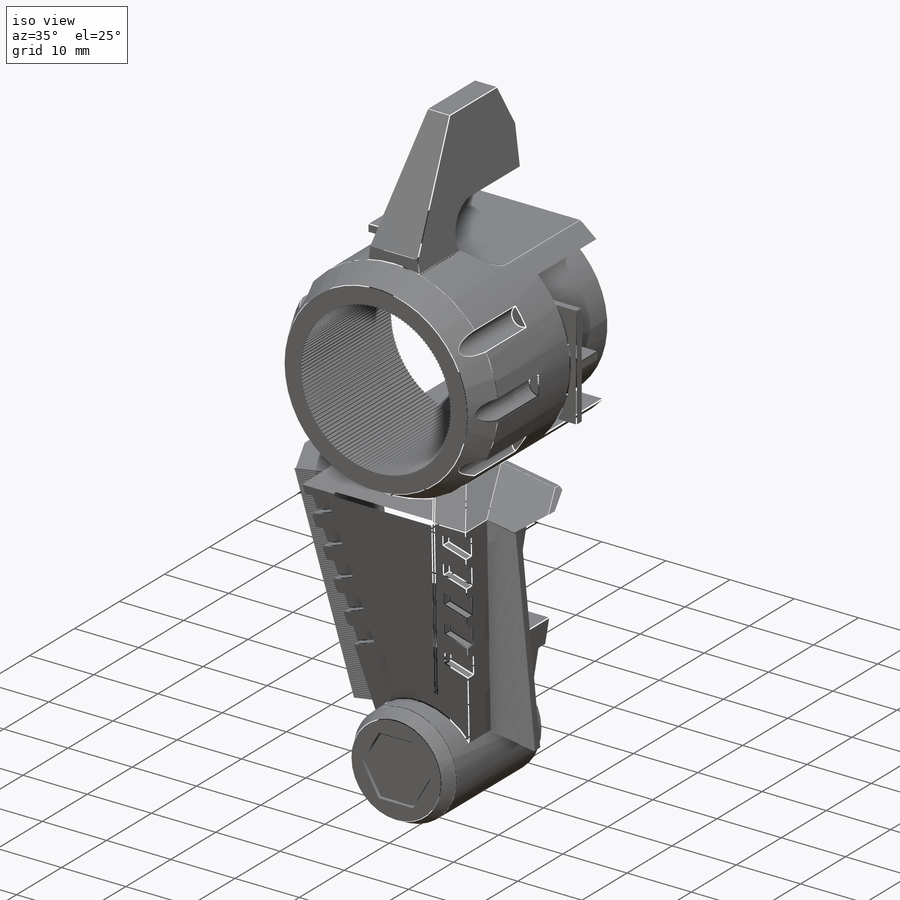
[diagram: iso view]
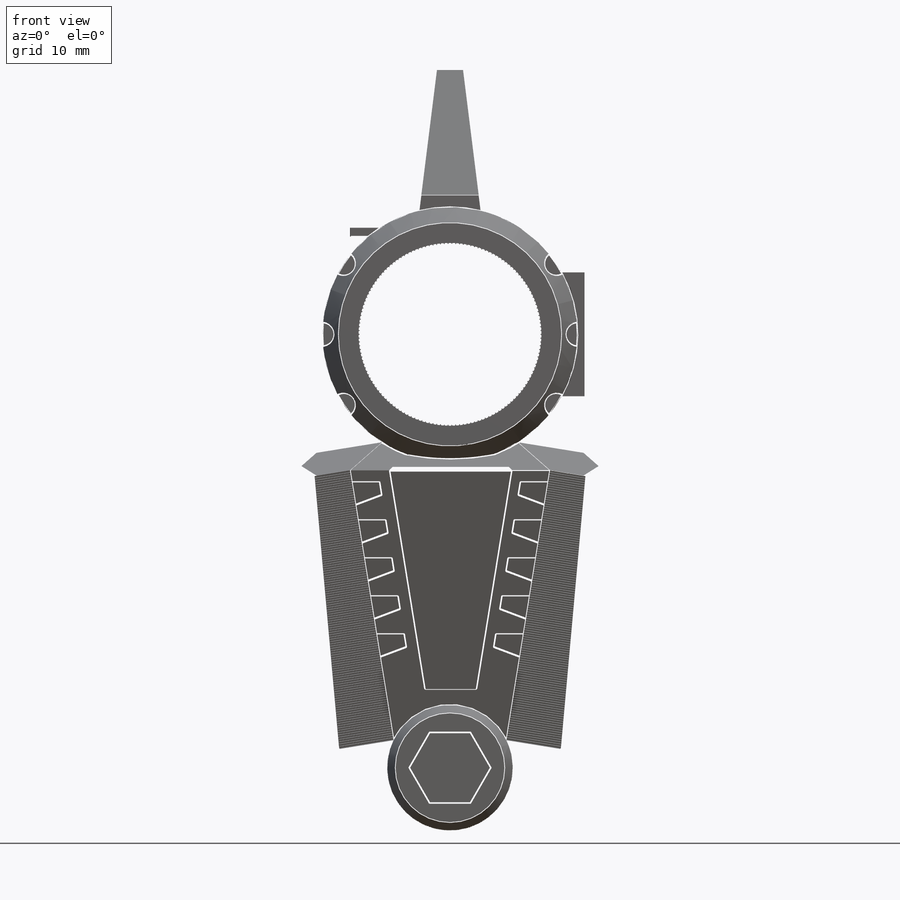
[diagram: front view]
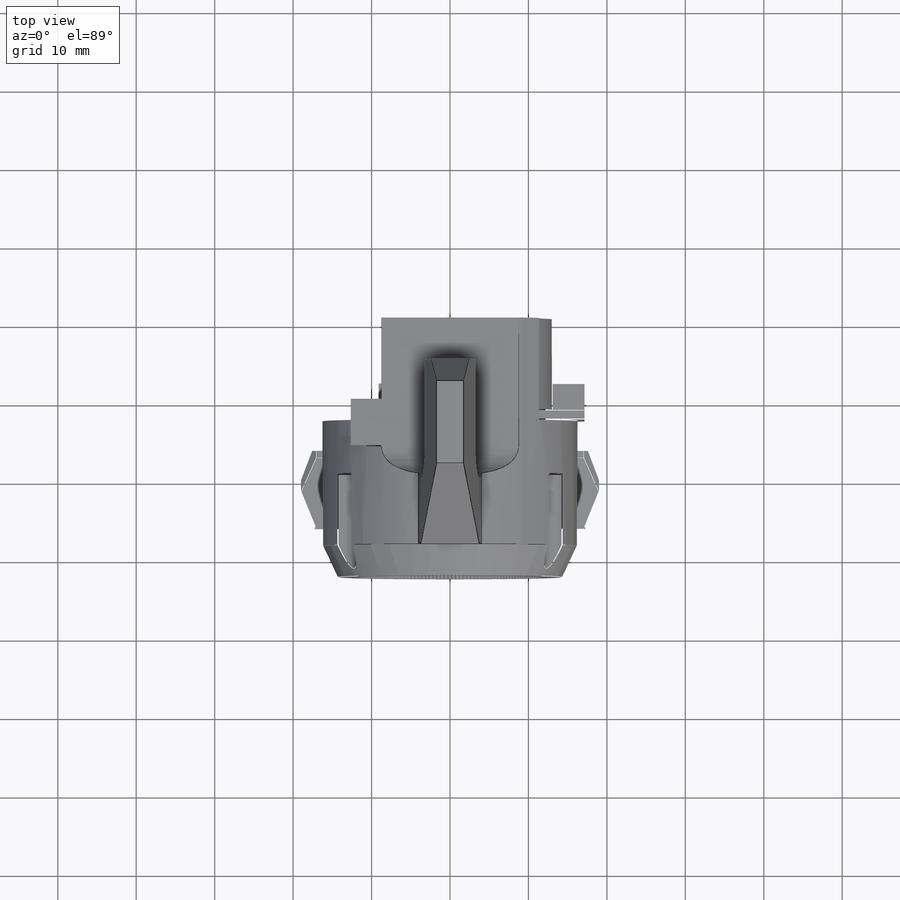
[diagram: top view]
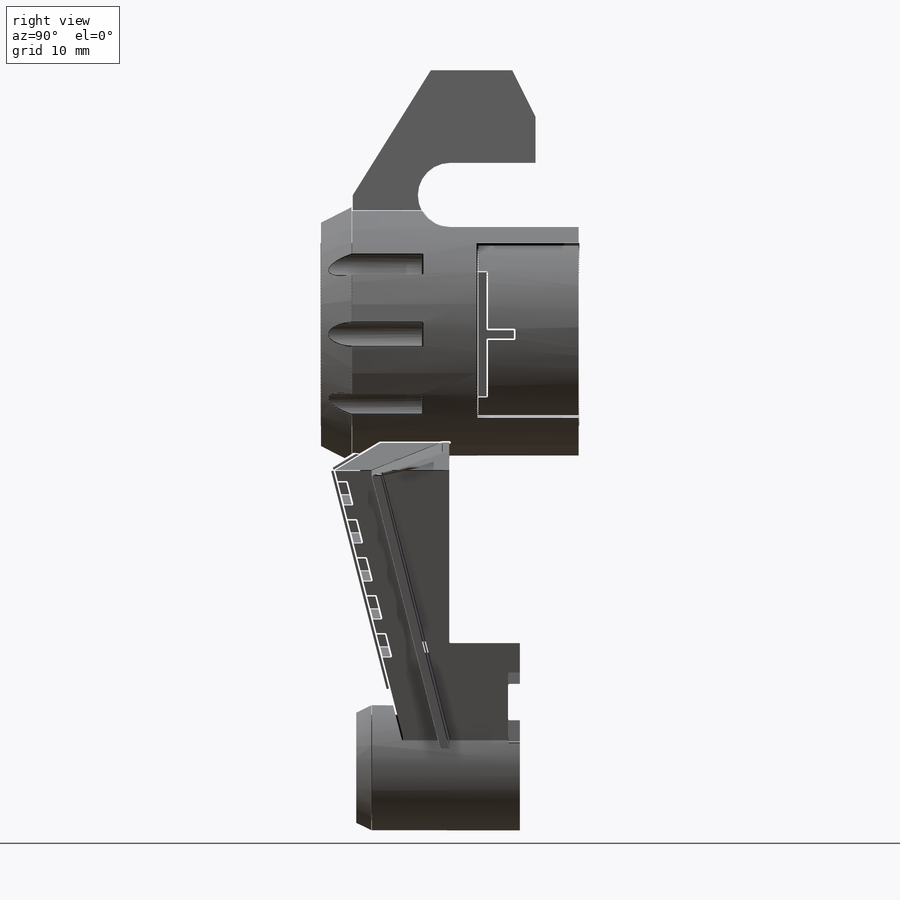
[diagram: right view]
SOLIDWORKS PART (.sldprt)
format: sldprt  version: not decoded by parser v0  size: 4,902,912 bytes
history: native  units: mm
features: sketch x43, cut_extrude x28, fillet x26, extrude x15, plane x4, chamfer x2, mirror x2, pattern_linear x2, material x1, pattern_circular x1 (+11 scaffold rows collapsed)
feature tree (135):
  scaffold x11  (default folders/planes/origin — collapsed)
  material  "Material <not specified>"
  sketch  "Sketch1"  dims[D1=32.5mm D2=23.0mm]
  extrude  "Boss-Extrude1"  Depth=33mm
  sketch  "Sketch2"  dims[D1=16.0mm D2=0.0mm D3=55.25mm]
  extrude  "Boss-Extrude2"  Depth=21mm
  sketch  "Sketch3"  dims[D1=7.5mm D2=9.0mm D3=25.5mm D4=12.5mm D5=13.75mm D6=35.5mm D7=7.0mm D8=4.5mm]
  extrude  "Boss-Extrude3"  Depth=25.5mm
  sketch  "Sketch4"  dims[D1=~0.046064mm]
  cut_extrude  "Cut-Extrude1"  Depth=38.5mm
  sketch  "Sketch5"  dims[D1=~4.089746mm]
  cut_extrude  "Cut-Extrude2"  Depth=38.5mm
  sketch  "Sketch6"  dims[D1=~4.089746mm]
  cut_extrude  "Cut-Extrude4"  Depth=38.5mm
  sketch  "Sketch7"  dims[D1=~34.403395mm]
  cut_extrude  "Cut-Extrude5"  Depth=38.5mm
  sketch  "Sketch8"  dims[D1=3.5mm D2=3.5mm D3=1.5mm D4=5.0mm D5=5.0mm D6=5.0mm D7=5.0mm D8=5.0mm D9=2.0mm D10=2.0mm D11=2.0mm D12=2.0mm D13=2.0mm D14=2.0mm D15=2.0mm D16=2.0mm D17=2.0mm D18=2.0mm D19=1.75mm D20=1.75mm D21=1.75mm D22=1.75mm D23=1.75mm D24=1.75mm D25=1.75mm D26=1.75mm]
  extrude  "Boss-Extrude4"  Depth=1.25mm
  sketch  "Sketch9"  dims[D1=0.0mm]
  extrude  "Boss-Extrude5"  Depth=1.25mm
  sketch  "Sketch10"  dims[D1=1.25mm]
  cut_extrude  "Cut-Extrude6"  Depth=1.25mm
  sketch  "Sketch11"  dims[D1=13.5mm]
  cut_extrude  "Cut-Extrude7"  Depth=1.25mm
  sketch  "Sketch12"  dims[c1.D1=~36.334651mm c1.D2=~15.995721mm c2.D1=7.5mm c2.D2=0.0mm]
  cut_extrude  "Cut-Extrude8"  Depth=13mm
  sketch  "Sketch14"  dims[c1.D1=~26.71471mm c1.D3=~15.892676mm c1.D4=~22.81174mm c2.D1=1.25mm c2.D2=1.25mm]
  cut_extrude  "Cut-Extrude9"  Depth=2.25mm
  sketch  "Sketch15"  dims[D1=~14.969448mm]
  cut_extrude  "Cut-Extrude10"  Depth=1.669992mm
  sketch  "Sketch16"  dims[D1=1.25mm D2=0.0mm]
  extrude  "Boss-Extrude6"  Depth=7mm
  sketch  "Sketch17"  dims[c1.D1=~35.993622mm c2.D1=95.0deg]
  cut_extrude  "Cut-Extrude11"  Depth=7mm
  sketch  "Sketch18"  dims[D1=1.0mm D2=1.0mm D3=~1.288846mm]
  extrude  "Boss-Extrude7"  Depth=8.5mm
  sketch  "Sketch19"  dims[D1=~3.951002mm]
  cut_extrude  "Cut-Extrude12"  Depth=8.5mm
  chamfer  "Chamfer1"  Distance=4mm
  chamfer  "Chamfer2"  Distance=2mm
  sketch  "Sketch20"  dims[D1=9.0mm D2=0.0mm]
  cut_extrude  "Cut-Extrude13"  Depth=0.25mm
  sketch  "Sketch21"  dims[c1.D1=~8.625504mm c1.D2=~2.115202mm c2.D1=9.0mm c2.D2=4.0mm c2.D3=1.5mm]
  cut_extrude  "Cut-Extrude14"  Depth=10mm
  sketch  "Sketch22"  dims[c1.D1=~4.404897mm c1.D2=~1.607875mm c2.D1=1.5mm c2.D2=4.5mm c2.D3=5.5mm]
  cut_extrude  "Cut-Extrude15"  Depth=10mm
  sketch  "Sketch23"  dims[D1=5.0mm D2=5.0mm D3=28.75mm]
  extrude  "Boss-Extrude8"  Depth=0.5mm
  sketch  "Sketch24"  dims[c1.D1=~2.197925mm c2.D1=60.0deg c2.D2=~2.582784mm c3.D2=60.0deg c3.D3=~15.560113mm]
  extrude  "Boss-Extrude9"  Depth=0.5mm
  plane  "Plane1"  Offset=0mm
  mirror  "Mirror8"
  mirror  "Mirror9"
  sketch  "Sketch26"  dims[D1=1.0mm D2=1.0mm]
  extrude  "Boss-Extrude10"  Depth=8.5mm
  sketch  "Sketch27"  dims[D1=0.1178mm]
  cut_extrude  "Cut-Extrude16"  Depth=8.5mm
  sketch  "Sketch28"  dims[c1.D2=~29.39094mm c1.D1=30.0mm c2.D2=5.0mm c2.D3=8.0mm c2.D1=1.5mm]
  cut_extrude  "Cut-Extrude17"  [1 undecoded]
  sketch  "Sketch29"  dims[D1=~5.145363mm]
  cut_extrude  "Cut-Extrude18"  [1 undecoded]
  sketch  "Sketch30"  dims[D1=~30.529706mm]
  cut_extrude  "Cut-Extrude19"  [1 undecoded]
  sketch  "Sketch31"  dims[c1.D1=~12.658765mm c1.D2=1.0mm c1.D3=22.0mm c2.D1=1.5mm]
  cut_extrude  "Cut-Extrude20"  [1 undecoded]
  sketch  "Sketch32"  dims[D1=~18.728516mm]
  cut_extrude  "Cut-Extrude21"  Depth=20.5mm
  sketch  "Sketch33"  dims[D1=~4.037594mm]
  cut_extrude  "Cut-Extrude22"  [1 undecoded]
  plane  "Plane2"  Offset=29mm
  sketch  "Sketch34"  dims[D1=8.0mm D2=4.0mm D3=3.5mm D4=1.75mm D5=18.0mm]
  extrude  "Boss-Extrude11"  Depth=23.5mm
  sketch  "Sketch35"  dims[D1=2.0mm D2=10.0mm]
  cut_extrude  "Cut-Extrude23"  Depth=23.5mm
  sketch  "Sketch36"  dims[D1=6.0mm D2=3.0mm]
  cut_extrude  "Cut-Extrude24"  Depth=23.5mm
  sketch  "Sketch37"  dims[D1=6.0mm]
  cut_extrude  "Cut-Extrude25"  Depth=23.5mm
  fillet  "Fillet1"  [1 undecoded]
  sketch  "Sketch38"  dims[c1.D1=16.0mm c1.D2=2.0mm c1.D3=7.0mm c2.D2=0.0mm]
  extrude  "Boss-Extrude12"  Depth=1.25mm
  sketch  "Sketch39"  dims[D1=1.25mm D2=0.625mm]
  extrude  "Boss-Extrude13"  Depth=3.5mm
  sketch  "Sketch40"  dims[c1.D1=~5.067491mm c1.D2=~16.135529mm c2.D1=5.5mm c2.D2=1.5mm c2.D3=6.0mm c2.D4=0.0mm]
  extrude  "Boss-Extrude14"  Depth=1.25mm
  sketch  "Sketch41"  dims[c1.D1=0.3mm c1.D2=0.15mm c1.D3=11.65mm c1.D4=0.5mm c2.D4=120.0deg c2.D5=~0.288842mm c3.D5=120.0deg]
  cut_extrude  "Cut-Extrude26"  Depth=38.25mm
  pattern_circular  "CirPattern1"  Count=150 Angle=360deg
  sketch  "Sketch42"  dims[D1=3.0mm D2=3.0mm D3=3.0mm D4=3.0mm D5=3.0mm D6=3.0mm D7=0.0mm D8=0.0mm D9=9.0mm D10=9.0mm D11=9.0mm D12=9.0mm]
  cut_extrude  "Cut-Extrude27"  Depth=9mm
  sketch  "Sketch43"  dims[c1.D1=0.1mm c1.D2=~0.098368mm c2.D2=120.0deg c2.D3=~0.256032mm c3.D3=120.0deg c3.D4=0.3mm]
  cut_extrude  "Cut-Extrude28"  [1 undecoded]
  pattern_linear  "LPattern1"  Count1=120 Count2=1 Spacing1=0.3mm Spacing2=10mm
  sketch  "Sketch44"  dims[c1.D1=0.3mm c1.D2=~0.138321mm c2.D2=120.0deg c2.D3=~0.153978mm c3.D3=120.0deg c3.D4=0.1mm]
  cut_extrude  "Cut-Extrude29"  [1 undecoded]
  pattern_linear  "LPattern2"  Count1=120 Count2=1 Spacing1=0.3mm Spacing2=10mm
  fillet  "Fillet4"  Radius=0.1mm
  fillet  "Fillet5"  Radius=0.1mm
  fillet  "Fillet8"  Radius=0.1mm
  fillet  "Fillet9"  Radius=0.1mm
  fillet  "Fillet10"  Radius=0.1mm
  plane  "Plane5"
  plane  "Plane6"
  sketch  "Sketch46"  dims[D1=0.5mm]
  extrude  "Boss-Extrude15"  [1 undecoded]
  fillet  "Fillet17"  Radius=0.1mm
  fillet  "Fillet18"  Radius=0.1mm
  fillet  "Fillet26"  Radius=0.1mm
  fillet  "Fillet27"  Radius=0.1mm
  fillet  "Fillet28"  Radius=0.1mm
  fillet  "Fillet29"  Radius=0.1mm
  fillet  "Fillet30"  Radius=0.1mm
  fillet  "Fillet31"  Radius=0.1mm
  fillet  "Fillet33"  Radius=0.1mm
  fillet  "Fillet34"  Radius=0.1mm
  fillet  "Fillet35"  Radius=0.1mm
  fillet  "Fillet36"  Radius=0.1mm
  fillet  "Fillet37"  Radius=0.1mm
  fillet  "Fillet38"  Radius=0.1mm
  fillet  "Fillet39"  Radius=0.1mm
  fillet  "Fillet40"  Radius=0.1mm
  fillet  "Fillet41"  Radius=0.1mm
  fillet  "Fillet42"  Radius=0.1mm
  fillet  "Fillet43"  Radius=0.1mm
  fillet  "Fillet44"  Radius=0.1mm
decode coverage: 108 of 119 modeling features carry decoded parameters
note: ~ marks probable driven/reference dimensions
note: 9 parameter values undecoded
summary: no parameter record found for 9 features
note: suppression state not decoded; provenance and decode notes live in map.json
